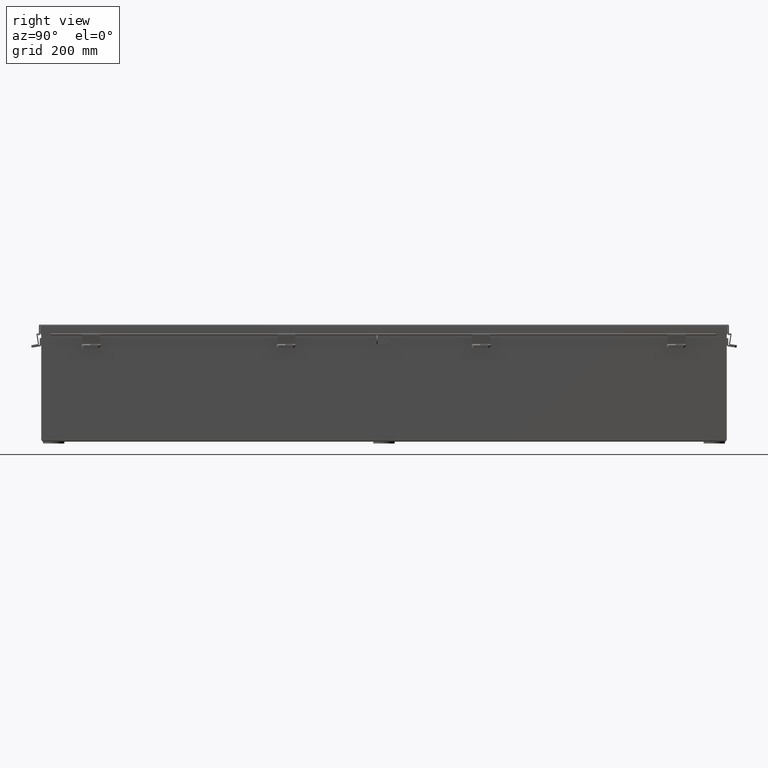
[diagram: clean part render]
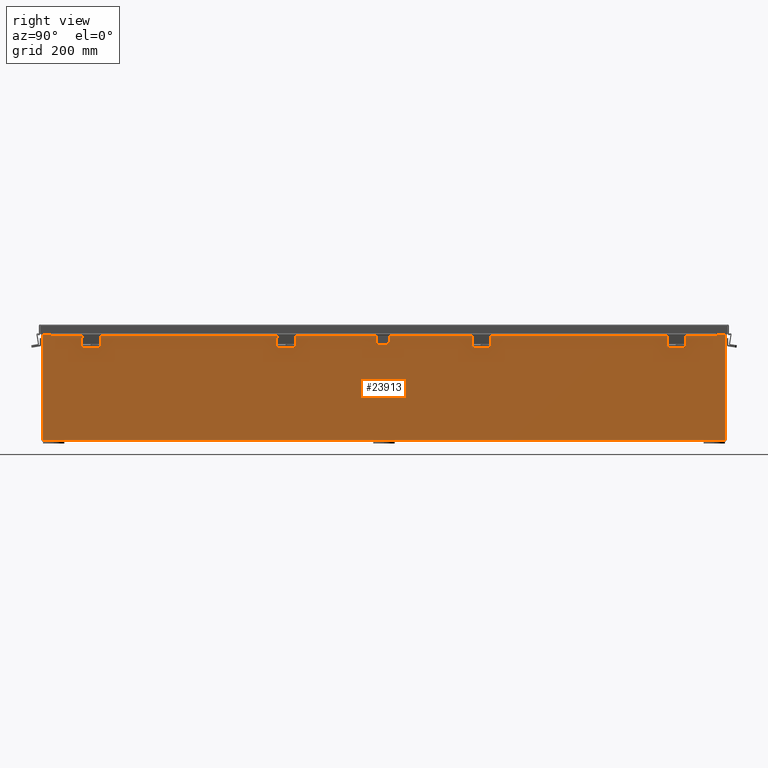
[diagram: same view with one face highlighted and labeled with its STEP entity id]
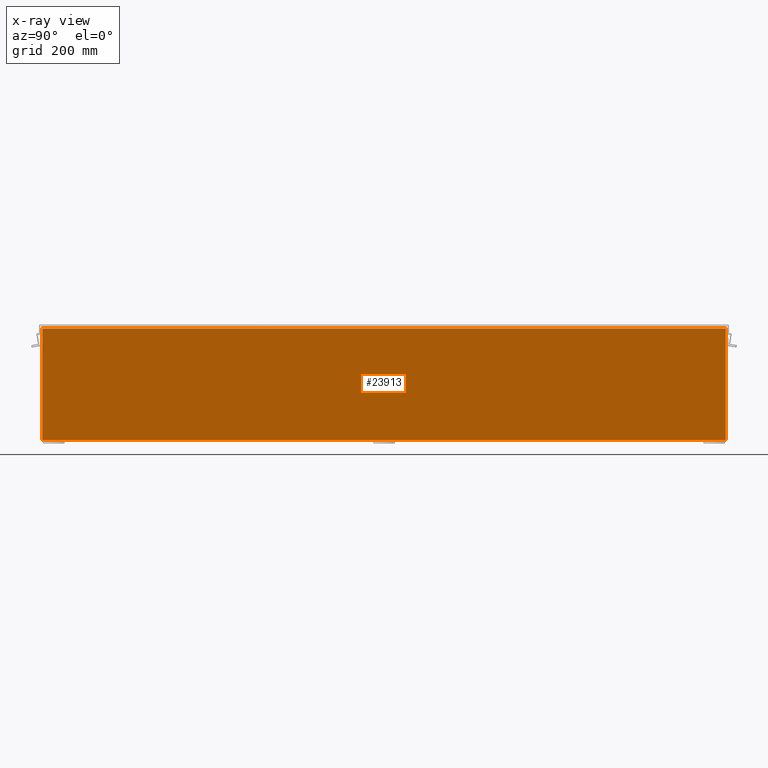
[diagram: x-ray of the same camera — body ghosted, the highlighted face saturated]
A machine part, right view. The second image highlights one B-rep face of the part: STEP entity #23913.
The next image is the same camera in x-ray: the body ghosted, the highlighted face saturated — about 0% of this face is hidden behind the body in this view.
In plain terms, the highlighted planar face has unit normal (-1, 0, 0).
Its self-contained STEP definition (entity closure, byte-faithful):
#1226 = LINE ( 'NONE', #9392, #30194 ) ;
#1424 = VERTEX_POINT ( 'NONE', #23617 ) ;
#3234 = VECTOR ( 'NONE', #4233, 39.37007874015748100 ) ;
#3727 = VERTEX_POINT ( 'NONE', #34557 ) ;
#4031 = CARTESIAN_POINT ( 'NONE',  ( 3.999999999999998200, 23.92529999999998900, 0.01299999999999765800 ) ) ;
#4158 = CARTESIAN_POINT ( 'NONE',  ( 3.999999999999998200, -23.92529999999998600, -1.417999849211356600E-014 ) ) ;
#4233 = DIRECTION ( 'NONE',  ( -3.479795166820706300E-015, 0.0000000000000000000, -1.000000000000000000 ) ) ;
#4606 = PLANE ( 'NONE',  #21396 ) ;
#6174 = EDGE_CURVE ( 'NONE', #25024, #1424, #15306, .T. ) ;
#6439 = ORIENTED_EDGE ( 'NONE', *, *, #34504, .T. ) ;
#7485 = CARTESIAN_POINT ( 'NONE',  ( 3.999999999999998200, 0.0000000000000000000, -1.417999849211356600E-014 ) ) ;
#8531 = EDGE_LOOP ( 'NONE', ( #24510, #18742, #13057, #6439 ) ) ;
#8650 = DIRECTION ( 'NONE',  ( -0.0000000000000000000, -1.000000000000000000, -0.0000000000000000000 ) ) ;
#9199 = EDGE_CURVE ( 'NONE', #3727, #1424, #24814, .T. ) ;
#9392 = CARTESIAN_POINT ( 'NONE',  ( 4.000000000000024900, 23.92529999999999600, 7.837599999999999200 ) ) ;
#10343 = DIRECTION ( 'NONE',  ( 3.479795166820705900E-015, 0.0000000000000000000, 1.000000000000000000 ) ) ;
#12220 = CARTESIAN_POINT ( 'NONE',  ( 3.999999999999998200, 23.92530000000000000, -1.417999849211356600E-014 ) ) ;
#13057 = ORIENTED_EDGE ( 'NONE', *, *, #6174, .F. ) ;
#15035 = DIRECTION ( 'NONE',  ( 3.479795166820706300E-015, 0.0000000000000000000, 1.000000000000000000 ) ) ;
#15306 = LINE ( 'NONE', #15804, #29393 ) ;
#15804 = CARTESIAN_POINT ( 'NONE',  ( 3.999999999999998200, -23.92529999999998600, 0.01299999999999984300 ) ) ;
#15981 = LINE ( 'NONE', #12220, #30060 ) ;
#17412 = EDGE_CURVE ( 'NONE', #23859, #3727, #1226, .T. ) ;
#18742 = ORIENTED_EDGE ( 'NONE', *, *, #9199, .T. ) ;
#21396 = AXIS2_PLACEMENT_3D ( 'NONE', #7485, #27217, #10343 ) ;
#23617 = CARTESIAN_POINT ( 'NONE',  ( 3.999999999999998200, -23.92529999999998200, 0.01300000000000071400 ) ) ;
#23859 = VERTEX_POINT ( 'NONE', #35175 ) ;
#23913 = ADVANCED_FACE ( 'NONE', ( #28430 ), #4606, .F. ) ;
#24510 = ORIENTED_EDGE ( 'NONE', *, *, #17412, .T. ) ;
#24814 = LINE ( 'NONE', #4158, #3234 ) ;
#25024 = VERTEX_POINT ( 'NONE', #4031 ) ;
#26900 = DIRECTION ( 'NONE',  ( 1.589325349289957500E-031, -1.000000000000000000, 4.567295697298285000E-017 ) ) ;
#27217 = DIRECTION ( 'NONE',  ( -1.000000000000000000, 0.0000000000000000000, 3.479795166820705900E-015 ) ) ;
#28430 = FACE_OUTER_BOUND ( 'NONE', #8531, .T. ) ;
#29393 = VECTOR ( 'NONE', #26900, 39.37007874015748100 ) ;
#30060 = VECTOR ( 'NONE', #15035, 39.37007874015748100 ) ;
#30194 = VECTOR ( 'NONE', #8650, 39.37007874015748100 ) ;
#34504 = EDGE_CURVE ( 'NONE', #25024, #23859, #15981, .T. ) ;
#34557 = CARTESIAN_POINT ( 'NONE',  ( 4.000000000000025800, -23.92529999999998600, 7.837599999999999200 ) ) ;
#35175 = CARTESIAN_POINT ( 'NONE',  ( 4.000000000000024900, 23.92529999999997200, 7.837599999999999200 ) ) ;